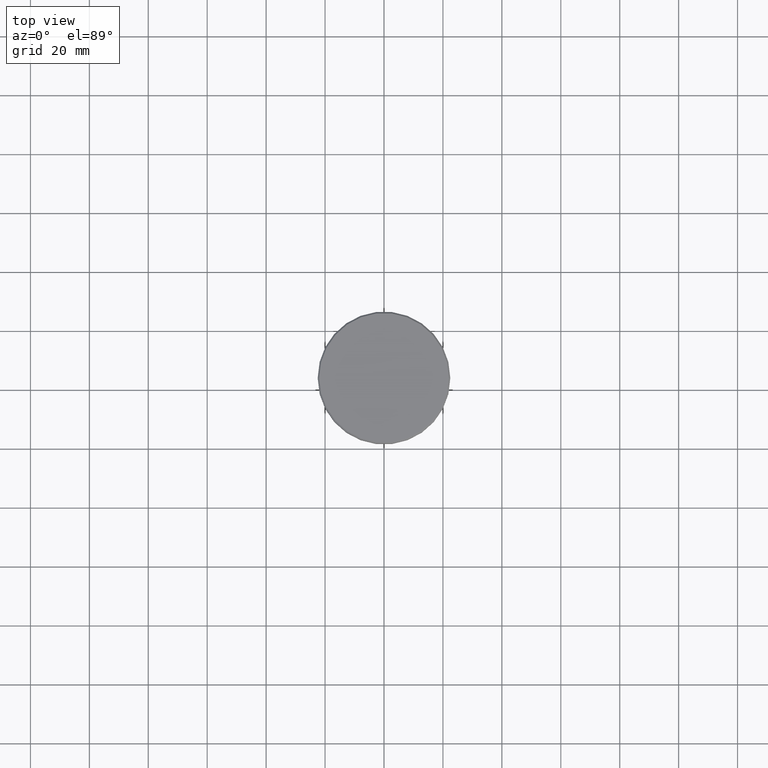
[diagram: clean part render]
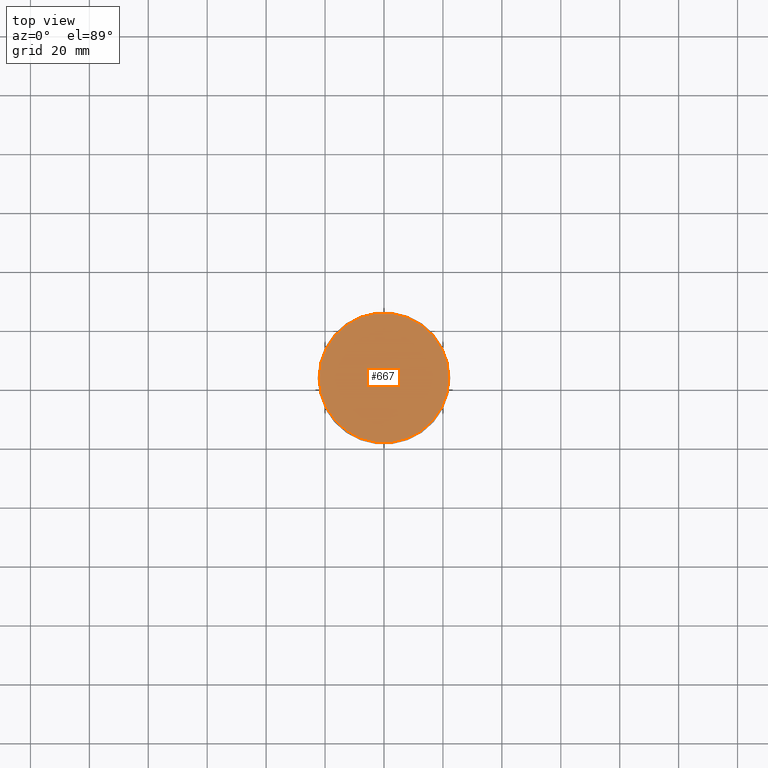
[diagram: same view with one face highlighted and labeled with its STEP entity id]
A machine part, top view. The second image highlights one B-rep face of the part: STEP entity #667.
In plain terms, the highlighted planar face has unit normal (0, -0, 1).
Its self-contained STEP definition (entity closure, byte-faithful):
#4 = VERTEX_POINT ( 'NONE', #957 ) ;
#98 = CARTESIAN_POINT ( 'NONE',  ( 0.000000000000000000, 0.000000000000000000, 0.000000000000000000 ) ) ;
#103 = DIRECTION ( 'NONE',  ( -0.000000000000000000, -0.000000000000000000, 1.000000000000000000 ) ) ;
#267 = DIRECTION ( 'NONE',  ( -0.000000000000000000, -0.000000000000000000, 1.000000000000000000 ) ) ;
#277 = DIRECTION ( 'NONE',  ( 0.000000000000000000, -0.000000000000000000, 1.000000000000000000 ) ) ;
#322 = FACE_OUTER_BOUND ( 'NONE', #645, .T. ) ;
#378 = CIRCLE ( 'NONE', #872, 21.99999999999996447 ) ;
#542 = VERTEX_POINT ( 'NONE', #941 ) ;
#551 = CARTESIAN_POINT ( 'NONE',  ( 0.000000000000000000, 0.000000000000000000, 0.000000000000000000 ) ) ;
#568 = CARTESIAN_POINT ( 'NONE',  ( 0.000000000000000000, 0.000000000000000000, 0.000000000000000000 ) ) ;
#645 = EDGE_LOOP ( 'NONE', ( #859, #1099 ) ) ;
#661 = DIRECTION ( 'NONE',  ( 1.000000000000000000, 0.000000000000000000, 0.000000000000000000 ) ) ;
#667 = ADVANCED_FACE ( 'NONE', ( #322 ), #1104, .T. ) ;
#715 = CIRCLE ( 'NONE', #936, 21.99999999999996447 ) ;
#720 = EDGE_CURVE ( 'NONE', #4, #542, #715, .T. ) ;
#766 = DIRECTION ( 'NONE',  ( 1.000000000000000000, 0.000000000000000000, 0.000000000000000000 ) ) ;
#859 = ORIENTED_EDGE ( 'NONE', *, *, #1078, .T. ) ;
#872 = AXIS2_PLACEMENT_3D ( 'NONE', #551, #267, #905 ) ;
#905 = DIRECTION ( 'NONE',  ( 1.000000000000000000, 0.000000000000000000, 0.000000000000000000 ) ) ;
#936 = AXIS2_PLACEMENT_3D ( 'NONE', #98, #103, #766 ) ;
#941 = CARTESIAN_POINT ( 'NONE',  ( -21.99999999999996447, 0.000000000000000000, 0.000000000000000000 ) ) ;
#957 = CARTESIAN_POINT ( 'NONE',  ( 21.99999999999996447, 2.724839128102858624E-15, 0.000000000000000000 ) ) ;
#1019 = AXIS2_PLACEMENT_3D ( 'NONE', #568, #277, #661 ) ;
#1078 = EDGE_CURVE ( 'NONE', #542, #4, #378, .T. ) ;
#1099 = ORIENTED_EDGE ( 'NONE', *, *, #720, .T. ) ;
#1104 = PLANE ( 'NONE',  #1019 ) ;